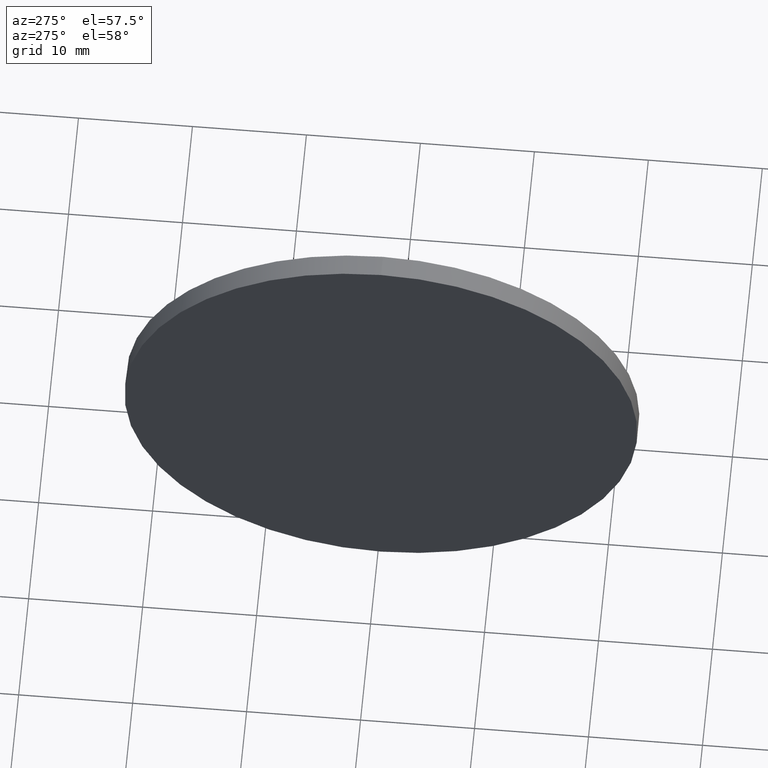
[diagram: clean part render]
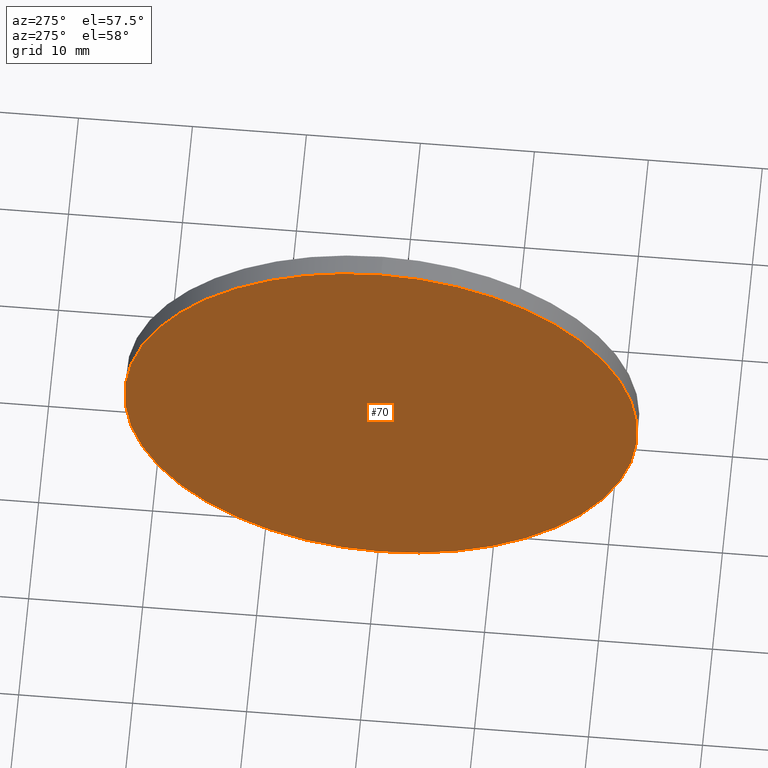
[diagram: same view with one face highlighted and labeled with its STEP entity id]
A machine part, auxiliary view. The second image highlights one B-rep face of the part: STEP entity #70.
In plain terms, the highlighted planar face has unit normal (1, 0, 0).
Its self-contained STEP definition (entity closure, byte-faithful):
#17 = CIRCLE ( 'NONE', #84, 22.50000000000000000 ) ;
#36 = CARTESIAN_POINT ( 'NONE',  ( 386.9354468989661200, -20.30678025366819400, 22.50000000000000000 ) ) ;
#39 = DIRECTION ( 'NONE',  ( 0.0000000000000000000, 0.0000000000000000000, 1.000000000000000000 ) ) ;
#41 = DIRECTION ( 'NONE',  ( -1.000000000000000000, -0.0000000000000000000, -0.0000000000000000000 ) ) ;
#45 = ORIENTED_EDGE ( 'NONE', *, *, #69, .T. ) ;
#46 = VERTEX_POINT ( 'NONE', #111 ) ;
#54 = DIRECTION ( 'NONE',  ( -1.000000000000000000, -0.0000000000000000000, -0.0000000000000000000 ) ) ;
#62 = AXIS2_PLACEMENT_3D ( 'NONE', #141, #54, #66 ) ;
#66 = DIRECTION ( 'NONE',  ( 0.0000000000000000000, 0.0000000000000000000, 1.000000000000000000 ) ) ;
#69 = EDGE_CURVE ( 'NONE', #46, #147, #17, .T. ) ;
#70 = ADVANCED_FACE ( 'NONE', ( #171 ), #125, .F. ) ;
#74 = ORIENTED_EDGE ( 'NONE', *, *, #87, .T. ) ;
#75 = AXIS2_PLACEMENT_3D ( 'NONE', #160, #109, #95 ) ;
#83 = EDGE_LOOP ( 'NONE', ( #74, #45 ) ) ;
#84 = AXIS2_PLACEMENT_3D ( 'NONE', #97, #41, #39 ) ;
#87 = EDGE_CURVE ( 'NONE', #147, #46, #106, .T. ) ;
#95 = DIRECTION ( 'NONE',  ( 0.0000000000000000000, 0.0000000000000000000, -1.000000000000000000 ) ) ;
#97 = CARTESIAN_POINT ( 'NONE',  ( 386.9354468989661200, -20.30678025366819400, 0.0000000000000000000 ) ) ;
#106 = CIRCLE ( 'NONE', #62, 22.50000000000000000 ) ;
#109 = DIRECTION ( 'NONE',  ( 1.000000000000000000, 0.0000000000000000000, 0.0000000000000000000 ) ) ;
#111 = CARTESIAN_POINT ( 'NONE',  ( 386.9354468989661200, -20.30678025366819000, -22.50000000000000000 ) ) ;
#125 = PLANE ( 'NONE',  #75 ) ;
#141 = CARTESIAN_POINT ( 'NONE',  ( 386.9354468989661200, -20.30678025366819400, 0.0000000000000000000 ) ) ;
#147 = VERTEX_POINT ( 'NONE', #36 ) ;
#160 = CARTESIAN_POINT ( 'NONE',  ( 386.9354468989661200, -20.30678025366819400, 0.0000000000000000000 ) ) ;
#171 = FACE_OUTER_BOUND ( 'NONE', #83, .T. ) ;